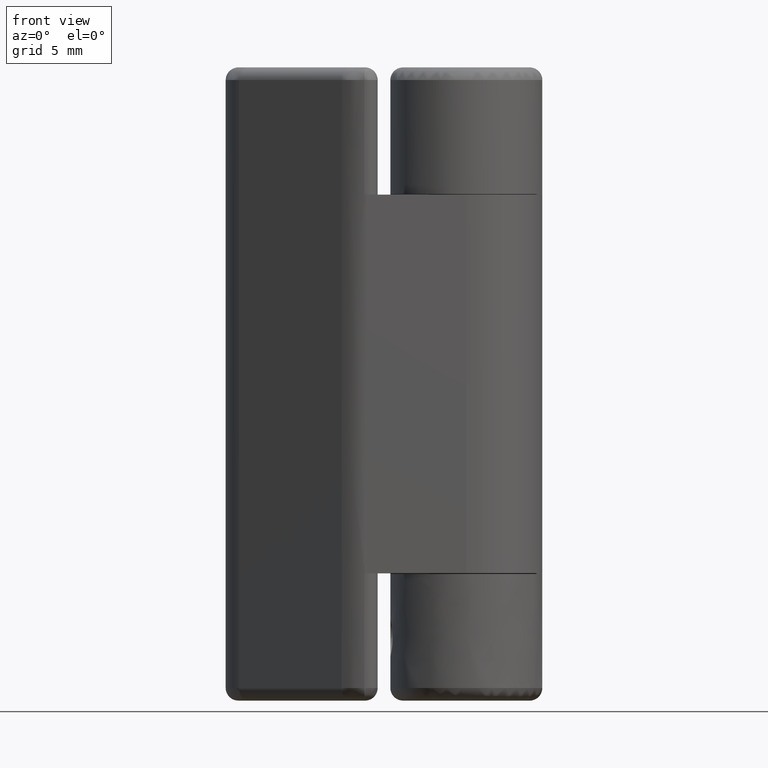
[diagram: clean part render]
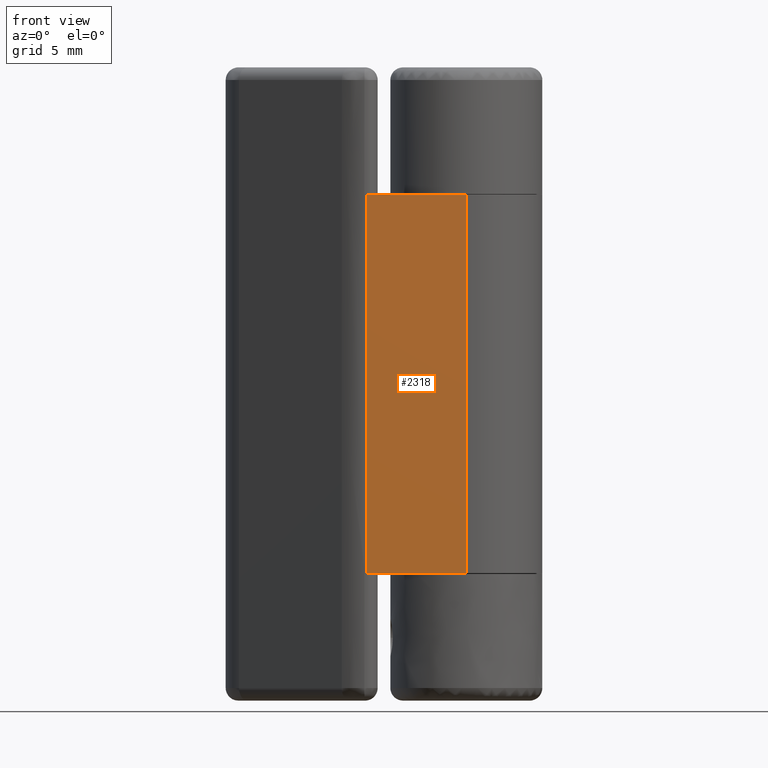
[diagram: same view with one face highlighted and labeled with its STEP entity id]
A machine part, front view. The second image highlights one B-rep face of the part: STEP entity #2318.
In plain terms, the highlighted face is a freeform B-spline surface patch.
Its self-contained STEP definition (entity closure, byte-faithful):
#2283=CARTESIAN_POINT('',(-8.291738843595226,-6.0,8.556498357652128));
#2284=CARTESIAN_POINT('',(-8.291738843595226,-6.0,41.443502444328502));
#2285=CARTESIAN_POINT('',(0.394468843595314,-6.0,8.556498357652128));
#2286=CARTESIAN_POINT('',(0.394468843595314,-6.0,41.443502444328502));
#2287=B_SPLINE_SURFACE_WITH_KNOTS('',1,1,((#2283,#2285),(#2284,#2286)),.UNSPECIFIED.,.F.,.F.,.U.,(2,2),(2,2),(0.0,32.887004086676370),(0.0,8.686207687190541),.UNSPECIFIED.);
#2288=CARTESIAN_POINT('',(3.673819E-016,-6.0,39.949997000000153));
#2289=VERTEX_POINT('',#2288);
#2290=CARTESIAN_POINT('',(-7.897269999999911,-6.0,39.949997000000153));
#2291=VERTEX_POINT('',#2290);
#2292=CARTESIAN_POINT('',(3.673819E-016,-6.0,39.949997000000153));
#2293=CARTESIAN_POINT('',(-7.897269999999911,-6.0,39.949997000000153));
#2294=QUASI_UNIFORM_CURVE('',1,(#2292,#2293),.UNSPECIFIED.,.F.,.U.);
#2295=EDGE_CURVE('',#2289,#2291,#2294,.T.);
#2296=ORIENTED_EDGE('',*,*,#2295,.T.);
#2297=CARTESIAN_POINT('',(-7.897269999999911,-6.0,10.050003000000141));
#2298=VERTEX_POINT('',#2297);
#2299=CARTESIAN_POINT('',(-7.897269999999911,-6.0,10.050003000000141));
#2300=CARTESIAN_POINT('',(-7.897269999999911,-6.0,39.949997000000153));
#2301=QUASI_UNIFORM_CURVE('',1,(#2299,#2300),.UNSPECIFIED.,.F.,.U.);
#2302=EDGE_CURVE('',#2298,#2291,#2301,.T.);
#2303=ORIENTED_EDGE('',*,*,#2302,.F.);
#2304=CARTESIAN_POINT('',(3.673819E-016,-6.0,10.050003000000141));
#2305=VERTEX_POINT('',#2304);
#2306=CARTESIAN_POINT('',(3.673819E-016,-6.0,10.050003000000141));
#2307=CARTESIAN_POINT('',(-7.897269999999911,-6.0,10.050003000000141));
#2308=QUASI_UNIFORM_CURVE('',1,(#2306,#2307),.UNSPECIFIED.,.F.,.U.);
#2309=EDGE_CURVE('',#2305,#2298,#2308,.T.);
#2310=ORIENTED_EDGE('',*,*,#2309,.F.);
#2311=CARTESIAN_POINT('',(3.673819E-016,-6.0,10.050003000000141));
#2312=CARTESIAN_POINT('',(3.673819E-016,-6.0,39.949997000000153));
#2313=QUASI_UNIFORM_CURVE('',1,(#2311,#2312),.UNSPECIFIED.,.F.,.U.);
#2314=EDGE_CURVE('',#2305,#2289,#2313,.T.);
#2315=ORIENTED_EDGE('',*,*,#2314,.T.);
#2316=EDGE_LOOP('',(#2296,#2303,#2310,#2315));
#2317=FACE_OUTER_BOUND('',#2316,.T.);
#2318=ADVANCED_FACE('',(#2317),#2287,.F.);